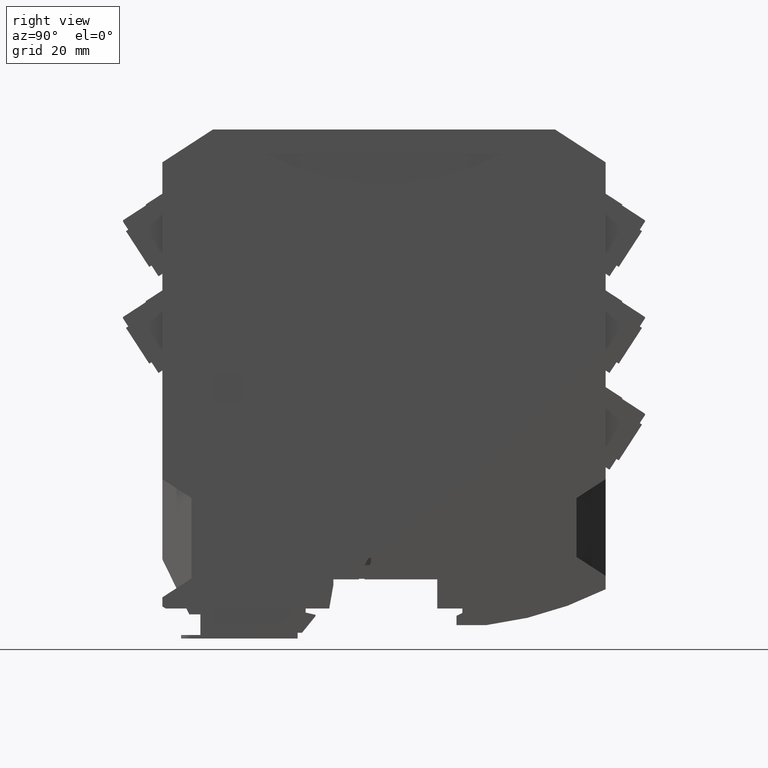
[diagram: clean part render]
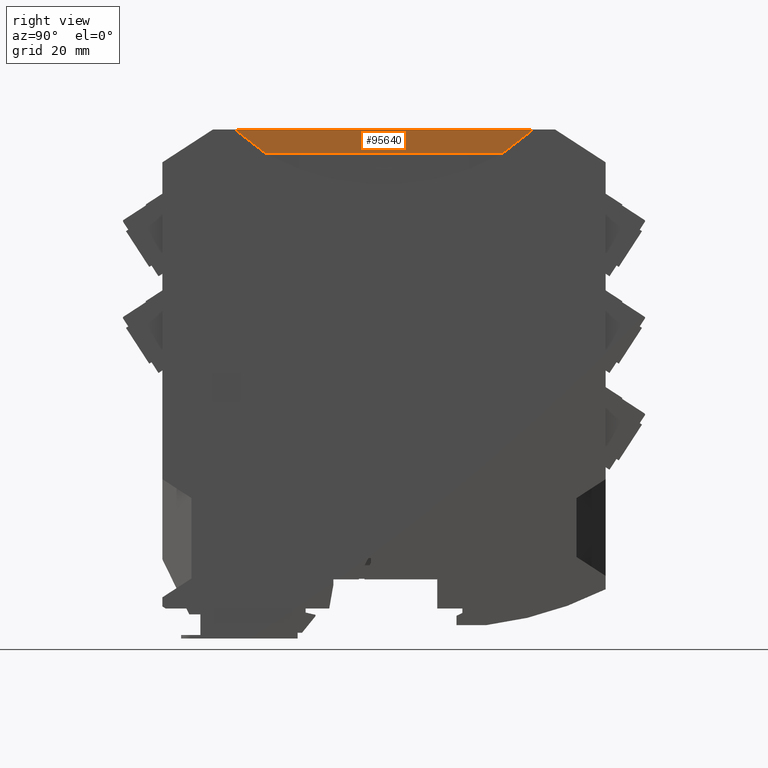
[diagram: same view with one face highlighted and labeled with its STEP entity id]
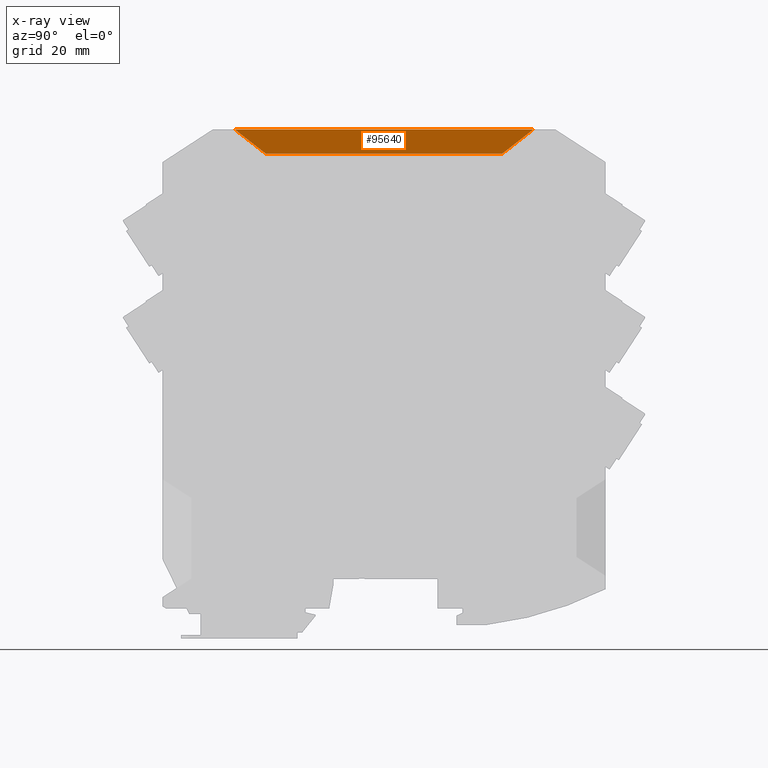
[diagram: x-ray of the same camera — body ghosted, the highlighted face saturated]
A machine part, right view. The second image highlights one B-rep face of the part: STEP entity #95640.
The next image is the same camera in x-ray: the body ghosted, the highlighted face saturated — about 0% of this face is hidden behind the body in this view.
In plain terms, the highlighted planar face has unit normal (1, -0, -0).
Its self-contained STEP definition (entity closure, byte-faithful):
#5260=CARTESIAN_POINT('',(12.5999992226559,16.1795783242839,
113.700000000005));
#5270=VERTEX_POINT('',#5260);
#5300=CARTESIAN_POINT('',(12.5999992226559,49.5000000003095,
87.6672334752794));
#5310=DIRECTION('',(1.40607140273701E-18,-0.788010753605531,
0.615661475327183));
#5320=VECTOR('',#5310,1.);
#5330=LINE('',#5300,#5320);
#5340=CARTESIAN_POINT('',(12.5999992226559,23.1552602197003,
108.249999999974));
#5350=VERTEX_POINT('',#5340);
#5360=EDGE_CURVE('',#5350,#5270,#5330,.T.);
#5590=CARTESIAN_POINT('',(12.5999992226559,75.8499500002824,
108.249999999994));
#5600=VERTEX_POINT('',#5590);
#5630=CARTESIAN_POINT('',(12.5999992226559,49.5000000003095,
87.6631628058867));
#5640=DIRECTION('',(-1.40607140273175E-18,-0.788010753607329,
-0.615661475324882));
#5650=VECTOR('',#5640,1.);
#5660=LINE('',#5630,#5650);
#5670=CARTESIAN_POINT('',(12.5999992226559,82.8256318956058,
113.699999999883));
#5680=VERTEX_POINT('',#5670);
#5690=EDGE_CURVE('',#5680,#5600,#5660,.T.);
#88870=CARTESIAN_POINT('',(12.5999992226559,49.5000000003095,
113.700000000006));
#88880=DIRECTION('',(1.06852826057186E-30,-1.,4.678673467734E-13));
#88890=VECTOR('',#88880,1.);
#88900=LINE('',#88870,#88890);
#88910=EDGE_CURVE('',#5680,#5270,#88900,.T.);
#94310=CARTESIAN_POINT('',(12.5999992226559,49.5000000003095,
108.249999999996));
#94320=DIRECTION('',(1.1363224128648E-31,-1.,4.97572203083267E-14));
#94330=VECTOR('',#94320,1.);
#94340=LINE('',#94310,#94330);
#94350=EDGE_CURVE('',#5600,#5350,#94340,.T.);
#95530=CARTESIAN_POINT('',(12.5999992226559,49.5000000000242,
70.3846654518157));
#95540=DIRECTION('',(1.,-5.21592700555424E-36,-2.28384227807285E-18));
#95550=DIRECTION('',(-4.4182643184979E-30,1.,-1.93457734662532E-12));
#95560=AXIS2_PLACEMENT_3D('',#95530,#95540,#95550);
#95570=PLANE('',#95560);
#95580=ORIENTED_EDGE('',*,*,#5360,.F.);
#95590=ORIENTED_EDGE('',*,*,#88910,.T.);
#95600=ORIENTED_EDGE('',*,*,#5690,.F.);
#95610=ORIENTED_EDGE('',*,*,#94350,.F.);
#95620=EDGE_LOOP('',(#95610,#95600,#95590,#95580));
#95630=FACE_OUTER_BOUND('',#95620,.T.);
#95640=ADVANCED_FACE('',(#95630),#95570,.T.);